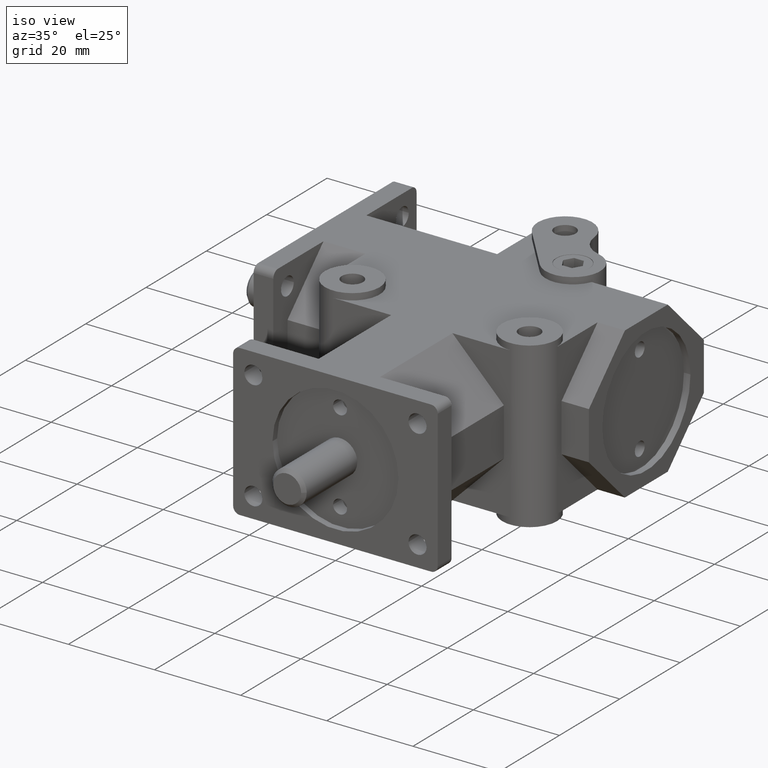
[diagram: clean part render]
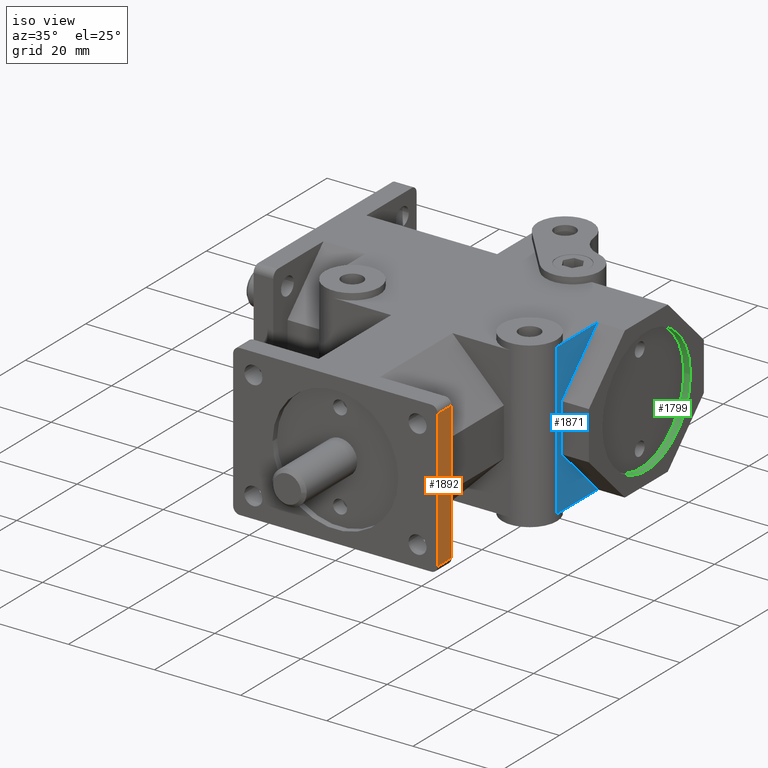
[diagram: same view with three faces highlighted in distinct colors, each labeled with its STEP entity id]
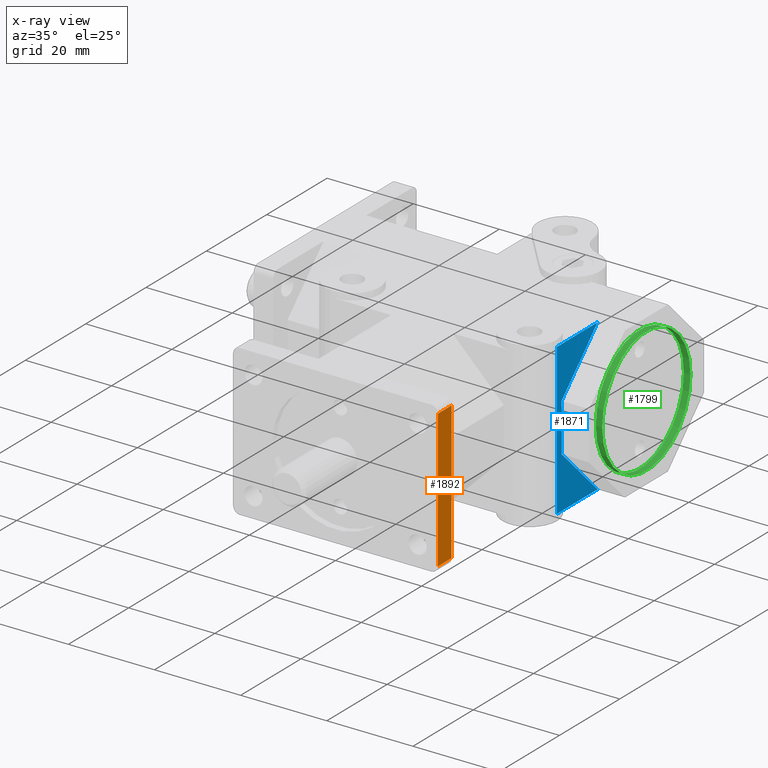
[diagram: x-ray of the same camera — body ghosted, the three highlighted faces saturated]
A machine part, iso view with three faces highlighted in distinct colors.
The next image is the same camera in x-ray (body ghosted, the three faces saturated) — at least one of them is partly hidden behind the body in this view.
Their STEP definitions:

[orange] entity #1892 — the highlighted planar face has unit normal (1, 0, 0).
#113=PLANE('',#2099);
#220=FACE_OUTER_BOUND('',#357,.T.);
#357=EDGE_LOOP('',(#1736,#1737,#1738,#1739));
#467=LINE('',#2776,#640);
#470=LINE('',#2788,#643);
#486=LINE('',#2847,#659);
#620=LINE('',#3198,#793);
#640=VECTOR('',#2236,1.);
#643=VECTOR('',#2247,1.);
#659=VECTOR('',#2301,1.);
#793=VECTOR('',#2655,1.);
#830=VERTEX_POINT('',#2773);
#831=VERTEX_POINT('',#2775);
#833=VERTEX_POINT('',#2781);
#836=VERTEX_POINT('',#2786);
#1017=EDGE_CURVE('',#830,#831,#467,.T.);
#1023=EDGE_CURVE('',#836,#833,#470,.T.);
#1051=EDGE_CURVE('',#833,#830,#486,.T.);
#1228=EDGE_CURVE('',#836,#831,#620,.T.);
#1736=ORIENTED_EDGE('',*,*,#1017,.F.);
#1737=ORIENTED_EDGE('',*,*,#1051,.F.);
#1738=ORIENTED_EDGE('',*,*,#1023,.F.);
#1739=ORIENTED_EDGE('',*,*,#1228,.T.);
#1892=ADVANCED_FACE('',(#220),#113,.T.);
#2099=AXIS2_PLACEMENT_3D('',#3199,#2656,#2657);
#2236=DIRECTION('',(0.,1.,0.));
#2247=DIRECTION('',(0.,-1.,0.));
#2301=DIRECTION('',(0.,0.,1.));
#2655=DIRECTION('',(0.,0.,1.));
#2656=DIRECTION('center_axis',(1.,0.,0.));
#2657=DIRECTION('ref_axis',(0.,-1.,0.));
#2773=CARTESIAN_POINT('',(23.749,0.,16.002));
#2775=CARTESIAN_POINT('',(23.749,4.572,16.002));
#2776=CARTESIAN_POINT('',(23.749,23.6376233160517,16.002));
#2781=CARTESIAN_POINT('',(23.749,0.,-16.002));
#2786=CARTESIAN_POINT('',(23.749,4.572,-16.002));
#2788=CARTESIAN_POINT('',(23.749,23.6376233160517,-16.002));
#2847=CARTESIAN_POINT('',(23.749,0.,0.));
#3198=CARTESIAN_POINT('',(23.749,4.572,0.));
#3199=CARTESIAN_POINT('Origin',(23.749,4.572,0.));

[blue] entity #1871 — the highlighted planar face has unit normal (1, 0, 0).
#100=PLANE('',#2070);
#199=FACE_OUTER_BOUND('',#332,.T.);
#332=EDGE_LOOP('',(#1636,#1637,#1638,#1639,#1640,#1641));
#501=LINE('',#2885,#674);
#511=LINE('',#2919,#684);
#559=LINE('',#3032,#732);
#604=LINE('',#3139,#777);
#606=LINE('',#3150,#779);
#607=LINE('',#3151,#780);
#674=VECTOR('',#2328,1.);
#684=VECTOR('',#2358,1.);
#732=VECTOR('',#2454,1.);
#777=VECTOR('',#2571,1.);
#779=VECTOR('',#2585,1.);
#780=VECTOR('',#2586,1.);
#876=VERTEX_POINT('',#2882);
#877=VERTEX_POINT('',#2884);
#890=VERTEX_POINT('',#2916);
#891=VERTEX_POINT('',#2918);
#932=VERTEX_POINT('',#3030);
#961=VERTEX_POINT('',#3149);
#1071=EDGE_CURVE('',#877,#876,#501,.T.);
#1089=EDGE_CURVE('',#891,#890,#511,.T.);
#1147=EDGE_CURVE('',#932,#876,#559,.F.);
#1202=EDGE_CURVE('',#877,#890,#604,.T.);
#1206=EDGE_CURVE('',#932,#961,#606,.T.);
#1207=EDGE_CURVE('',#891,#961,#607,.F.);
#1636=ORIENTED_EDGE('',*,*,#1089,.T.);
#1637=ORIENTED_EDGE('',*,*,#1202,.F.);
#1638=ORIENTED_EDGE('',*,*,#1071,.T.);
#1639=ORIENTED_EDGE('',*,*,#1147,.F.);
#1640=ORIENTED_EDGE('',*,*,#1206,.T.);
#1641=ORIENTED_EDGE('',*,*,#1207,.F.);
#1871=ADVANCED_FACE('',(#199),#100,.T.);
#2070=AXIS2_PLACEMENT_3D('',#3148,#2583,#2584);
#2328=DIRECTION('',(0.,1.,0.));
#2358=DIRECTION('',(0.,-1.,0.));
#2454=DIRECTION('',(0.,-0.707106781186547,0.707106781186548));
#2571=DIRECTION('',(0.,0.,1.));
#2583=DIRECTION('center_axis',(1.,0.,0.));
#2584=DIRECTION('ref_axis',(0.,-1.,0.));
#2585=DIRECTION('',(0.,0.,1.));
#2586=DIRECTION('',(0.,0.707106781186547,0.707106781186548));
#2882=CARTESIAN_POINT('',(26.924,48.4505,-17.526));
#2884=CARTESIAN_POINT('',(26.924,34.9885,-17.526));
#2885=CARTESIAN_POINT('',(26.924,39.7031233160517,-17.526));
#2916=CARTESIAN_POINT('',(26.924,34.9885,17.526));
#2918=CARTESIAN_POINT('',(26.924,48.4505,17.526));
#2919=CARTESIAN_POINT('',(26.924,34.9885,17.526));
#3030=CARTESIAN_POINT('',(26.924,36.5125,-5.588));
#3032=CARTESIAN_POINT('',(26.924,38.1,-7.1755));
#3139=CARTESIAN_POINT('',(26.924,34.9885,0.));
#3148=CARTESIAN_POINT('Origin',(26.924,36.5125,0.));
#3149=CARTESIAN_POINT('',(26.924,36.5125,5.588));
#3150=CARTESIAN_POINT('',(26.924,36.5125,0.));
#3151=CARTESIAN_POINT('',(26.924,38.1,7.1755));

[green] entity #1799 — the highlighted cylindrical surface (bore or boss wall) has radius 14.6177 mm, axis along (-1, 0, 0).
#127=FACE_OUTER_BOUND('',#231,.T.);
#231=EDGE_LOOP('',(#1268,#1269,#1270,#1271));
#380=CIRCLE('',#1936,14.6177);
#381=CIRCLE('',#1937,14.6177);
#461=LINE('',#2728,#634);
#634=VECTOR('',#2172,14.6177);
#817=VERTEX_POINT('',#2725);
#818=VERTEX_POINT('',#2727);
#998=EDGE_CURVE('',#817,#817,#380,.T.);
#999=EDGE_CURVE('',#817,#818,#461,.T.);
#1000=EDGE_CURVE('',#818,#818,#381,.T.);
#1268=ORIENTED_EDGE('',*,*,#998,.F.);
#1269=ORIENTED_EDGE('',*,*,#999,.T.);
#1270=ORIENTED_EDGE('',*,*,#1000,.F.);
#1271=ORIENTED_EDGE('',*,*,#999,.F.);
#1762=CYLINDRICAL_SURFACE('',#1935,14.6177);
#1799=ADVANCED_FACE('',(#127),#1762,.F.);
#1935=AXIS2_PLACEMENT_3D('',#2724,#2168,#2169);
#1936=AXIS2_PLACEMENT_3D('',#2726,#2170,#2171);
#1937=AXIS2_PLACEMENT_3D('',#2729,#2173,#2174);
#2168=DIRECTION('center_axis',(-1.,0.,0.));
#2169=DIRECTION('ref_axis',(0.,-1.,0.));
#2170=DIRECTION('center_axis',(-1.,0.,0.));
#2171=DIRECTION('ref_axis',(0.,-1.,0.));
#2172=DIRECTION('',(-1.,0.,0.));
#2173=DIRECTION('center_axis',(1.,0.,0.));
#2174=DIRECTION('ref_axis',(0.,-1.,0.));
#2724=CARTESIAN_POINT('Origin',(33.274,55.5625,0.));
#2725=CARTESIAN_POINT('',(33.274,70.1802,-1.79015195158963E-15));
#2726=CARTESIAN_POINT('Origin',(33.274,55.5625,0.));
#2727=CARTESIAN_POINT('',(31.75,70.1802,-1.79015195158963E-15));
#2728=CARTESIAN_POINT('',(33.274,70.1802,-1.79015195158963E-15));
#2729=CARTESIAN_POINT('Origin',(31.75,55.5625,0.));